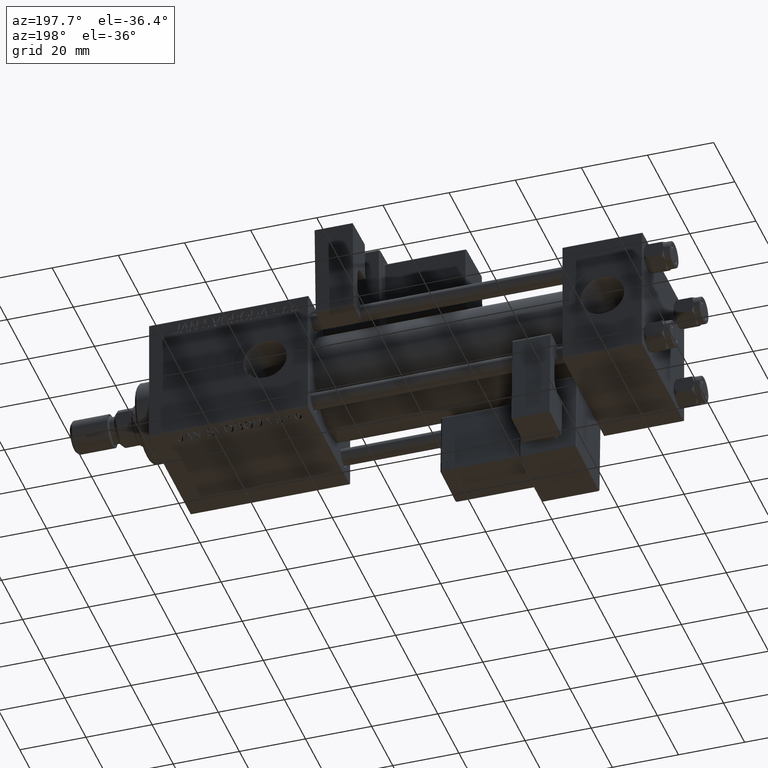
[diagram: clean part render]
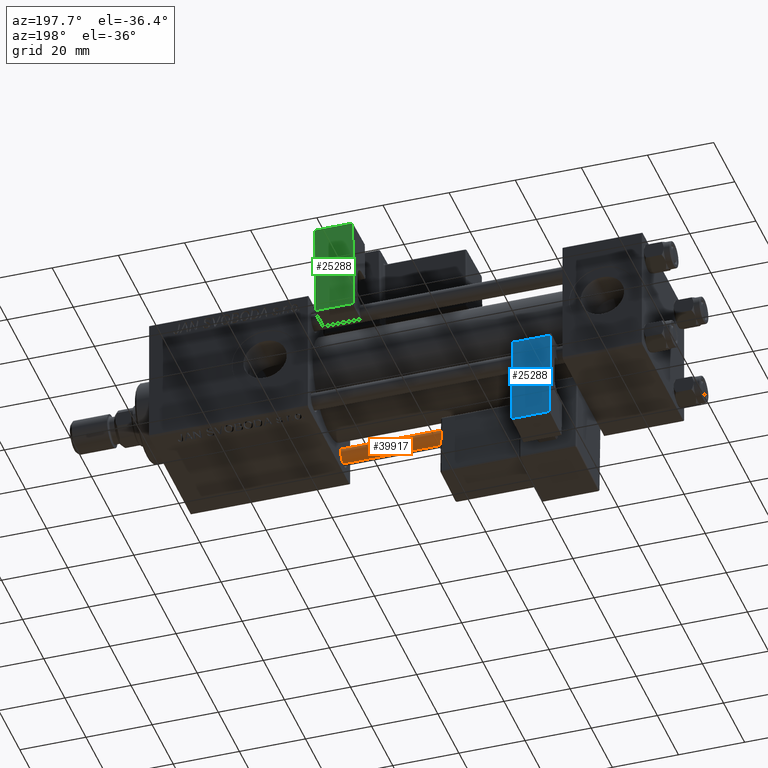
[diagram: same view with three faces highlighted in distinct colors, each labeled with its STEP entity id]
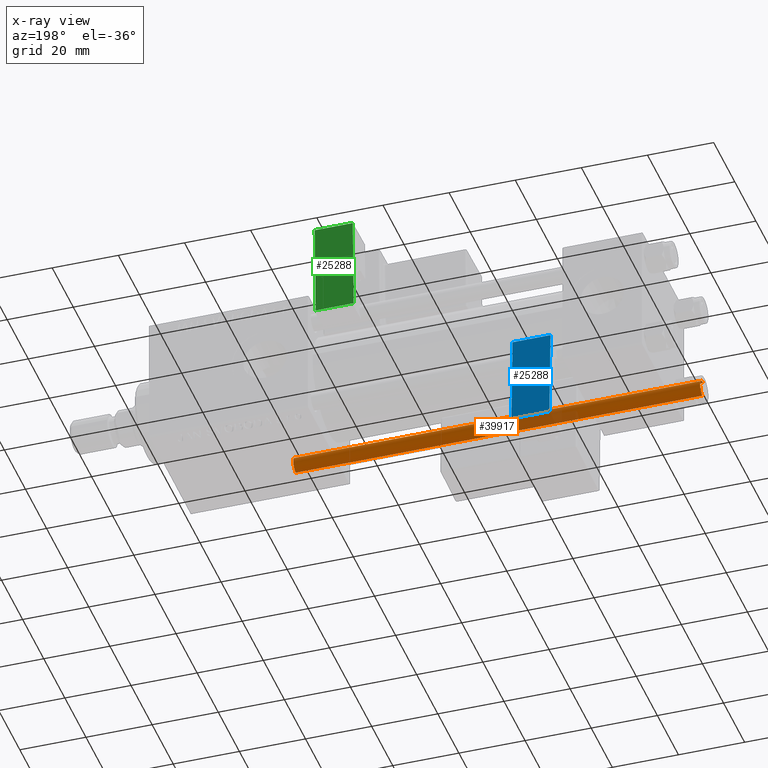
[diagram: x-ray of the same camera — body ghosted, the three highlighted faces saturated]
A machine part, auxiliary view with three faces highlighted in distinct colors.
The next image is the same camera in x-ray (body ghosted, the three faces saturated) — at least one of them is partly hidden behind the body in this view.
Their STEP definitions:

[orange] entity #39917 — the highlighted cylindrical surface (edge-blend (fillet) strip) has radius 2.5 mm, axis along (-1, -0, -0).
#3962 = CARTESIAN_POINT ( 'NONE',  ( -2.500000000000000000, 0.000000000000000000, 123.5000000000000000 ) ) ;
#5539 = VECTOR ( 'NONE', #29786, 1000.000000000000000 ) ;
#6005 = EDGE_CURVE ( 'NONE', #32457, #11741, #8797, .T. ) ;
#6721 = EDGE_CURVE ( 'NONE', #16374, #32172, #20381, .T. ) ;
#7364 = DIRECTION ( 'NONE',  ( 1.000000000000000000, 0.000000000000000000, 0.000000000000000000 ) ) ;
#7715 = CARTESIAN_POINT ( 'NONE',  ( 0.000000000000000000, 0.000000000000000000, 124.0000000000000000 ) ) ;
#8247 = ORIENTED_EDGE ( 'NONE', *, *, #6005, .T. ) ;
#8320 = DIRECTION ( 'NONE',  ( 0.000000000000000000, 0.000000000000000000, -1.000000000000000000 ) ) ;
#8797 = CIRCLE ( 'NONE', #39892, 2.500000000000000000 ) ;
#9790 = EDGE_CURVE ( 'NONE', #32457, #32172, #50935, .T. ) ;
#11741 = VERTEX_POINT ( 'NONE', #3962 ) ;
#12439 = DIRECTION ( 'NONE',  ( -1.000000000000000000, 0.000000000000000000, 0.000000000000000000 ) ) ;
#12831 = CARTESIAN_POINT ( 'NONE',  ( 2.500000000000000000, 3.061616997868383141E-16, 124.0000000000000000 ) ) ;
#13504 = EDGE_LOOP ( 'NONE', ( #18262, #8247, #37176, #36371 ) ) ;
#15792 = FACE_OUTER_BOUND ( 'NONE', #13504, .T. ) ;
#16374 = VERTEX_POINT ( 'NONE', #50650 ) ;
#18084 = LINE ( 'NONE', #42602, #5539 ) ;
#18262 = ORIENTED_EDGE ( 'NONE', *, *, #9790, .F. ) ;
#20381 = CIRCLE ( 'NONE', #21255, 2.500000000000000000 ) ;
#21255 = AXIS2_PLACEMENT_3D ( 'NONE', #45465, #50195, #7364 ) ;
#23249 = CARTESIAN_POINT ( 'NONE',  ( 2.500000000000000000, 3.061616997868383141E-16, 123.5000000000000000 ) ) ;
#24670 = DIRECTION ( 'NONE',  ( -0.000000000000000000, -0.000000000000000000, -1.000000000000000000 ) ) ;
#25109 = EDGE_CURVE ( 'NONE', #11741, #16374, #18084, .T. ) ;
#29774 = DIRECTION ( 'NONE',  ( -0.000000000000000000, -0.000000000000000000, -1.000000000000000000 ) ) ;
#29786 = DIRECTION ( 'NONE',  ( -0.000000000000000000, -0.000000000000000000, -1.000000000000000000 ) ) ;
#31706 = VECTOR ( 'NONE', #29774, 1000.000000000000000 ) ;
#32172 = VERTEX_POINT ( 'NONE', #49565 ) ;
#32457 = VERTEX_POINT ( 'NONE', #23249 ) ;
#32491 = CYLINDRICAL_SURFACE ( 'NONE', #45007, 2.500000000000000000 ) ;
#33360 = DIRECTION ( 'NONE',  ( 1.000000000000000000, 0.000000000000000000, 0.000000000000000000 ) ) ;
#36371 = ORIENTED_EDGE ( 'NONE', *, *, #6721, .T. ) ;
#37176 = ORIENTED_EDGE ( 'NONE', *, *, #25109, .T. ) ;
#39892 = AXIS2_PLACEMENT_3D ( 'NONE', #41709, #8320, #33360 ) ;
#39917 = ADVANCED_FACE ( 'NONE', ( #15792 ), #32491, .T. ) ;
#41709 = CARTESIAN_POINT ( 'NONE',  ( 0.000000000000000000, 0.000000000000000000, 123.5000000000000000 ) ) ;
#42602 = CARTESIAN_POINT ( 'NONE',  ( -2.500000000000000000, 0.000000000000000000, 124.0000000000000000 ) ) ;
#45007 = AXIS2_PLACEMENT_3D ( 'NONE', #7715, #24670, #12439 ) ;
#45465 = CARTESIAN_POINT ( 'NONE',  ( 0.000000000000000000, 0.000000000000000000, 0.5000000000000004441 ) ) ;
#49565 = CARTESIAN_POINT ( 'NONE',  ( 2.500000000000000000, 3.061616997868383141E-16, 0.5000000000000004441 ) ) ;
#50195 = DIRECTION ( 'NONE',  ( -0.000000000000000000, -0.000000000000000000, 1.000000000000000000 ) ) ;
#50650 = CARTESIAN_POINT ( 'NONE',  ( -2.500000000000000000, 0.000000000000000000, 0.5000000000000004441 ) ) ;
#50935 = LINE ( 'NONE', #12831, #31706 ) ;

[blue] entity #25288 — the highlighted planar face has unit normal (0, -0.9994, -0.0353).
#3071 = DIRECTION ( 'NONE',  ( 1.000000000000000000, 1.508455196501571183E-16, 0.000000000000000000 ) ) ;
#3275 = CARTESIAN_POINT ( 'NONE',  ( -5.750000000000000000, 5.750000000000000000, 28.00000000000000000 ) ) ;
#3334 = DIRECTION ( 'NONE',  ( 1.508455196501571183E-16, -1.000000000000000000, 0.000000000000000000 ) ) ;
#8260 = EDGE_LOOP ( 'NONE', ( #50239, #29198, #14614, #49750 ) ) ;
#8710 = VERTEX_POINT ( 'NONE', #52636 ) ;
#11898 = DIRECTION ( 'NONE',  ( 1.000000000000000000, 1.508455196501571183E-16, -0.000000000000000000 ) ) ;
#14614 = ORIENTED_EDGE ( 'NONE', *, *, #27803, .T. ) ;
#15679 = LINE ( 'NONE', #54864, #17198 ) ;
#17158 = VECTOR ( 'NONE', #54347, 1000.000000000000000 ) ;
#17198 = VECTOR ( 'NONE', #46255, 1000.000000000000000 ) ;
#17541 = CARTESIAN_POINT ( 'NONE',  ( -5.750000000000000000, 5.750000000000000000, 28.00000000000000000 ) ) ;
#19694 = EDGE_CURVE ( 'NONE', #51663, #40198, #26420, .T. ) ;
#20456 = VECTOR ( 'NONE', #30592, 1000.000000000000000 ) ;
#25288 = ADVANCED_FACE ( 'NONE', ( #45877 ), #28091, .F. ) ;
#26420 = LINE ( 'NONE', #47027, #20456 ) ;
#27803 = EDGE_CURVE ( 'NONE', #48949, #8710, #54616, .T. ) ;
#28091 = PLANE ( 'NONE',  #34885 ) ;
#29198 = ORIENTED_EDGE ( 'NONE', *, *, #52222, .T. ) ;
#30592 = DIRECTION ( 'NONE',  ( -0.000000000000000000, -0.000000000000000000, -1.000000000000000000 ) ) ;
#31297 = EDGE_CURVE ( 'NONE', #8710, #40198, #15679, .T. ) ;
#34611 = CARTESIAN_POINT ( 'NONE',  ( -5.750000000000000000, 5.750000000000000000, 0.000000000000000000 ) ) ;
#34885 = AXIS2_PLACEMENT_3D ( 'NONE', #46165, #3334, #3071 ) ;
#40198 = VERTEX_POINT ( 'NONE', #34611 ) ;
#41382 = LINE ( 'NONE', #3275, #54290 ) ;
#45877 = FACE_OUTER_BOUND ( 'NONE', #8260, .T. ) ;
#46165 = CARTESIAN_POINT ( 'NONE',  ( -5.750000000000000000, 5.750000000000000000, 12.00000000000000000 ) ) ;
#46255 = DIRECTION ( 'NONE',  ( -1.000000000000000000, -1.508455196501571429E-16, -0.000000000000000000 ) ) ;
#47027 = CARTESIAN_POINT ( 'NONE',  ( -5.750000000000000000, 5.750000000000000000, 12.00000000000000000 ) ) ;
#48949 = VERTEX_POINT ( 'NONE', #52756 ) ;
#49374 = CARTESIAN_POINT ( 'NONE',  ( 5.750000000000000000, 5.750000000000001776, 12.00000000000000000 ) ) ;
#49750 = ORIENTED_EDGE ( 'NONE', *, *, #31297, .T. ) ;
#50239 = ORIENTED_EDGE ( 'NONE', *, *, #19694, .F. ) ;
#51663 = VERTEX_POINT ( 'NONE', #17541 ) ;
#52222 = EDGE_CURVE ( 'NONE', #51663, #48949, #41382, .T. ) ;
#52636 = CARTESIAN_POINT ( 'NONE',  ( 5.750000000000000000, 5.750000000000001776, 0.000000000000000000 ) ) ;
#52756 = CARTESIAN_POINT ( 'NONE',  ( 5.750000000000000000, 5.750000000000001776, 28.00000000000000000 ) ) ;
#54290 = VECTOR ( 'NONE', #11898, 1000.000000000000000 ) ;
#54347 = DIRECTION ( 'NONE',  ( -0.000000000000000000, -0.000000000000000000, -1.000000000000000000 ) ) ;
#54616 = LINE ( 'NONE', #49374, #17158 ) ;
#54864 = CARTESIAN_POINT ( 'NONE',  ( -5.750000000000000000, 5.750000000000000000, 0.000000000000000000 ) ) ;

[green] entity #25288 — the highlighted planar face has unit normal (-0, -0.9994, 0.0353).
#3071 = DIRECTION ( 'NONE',  ( 1.000000000000000000, 1.508455196501571183E-16, 0.000000000000000000 ) ) ;
#3275 = CARTESIAN_POINT ( 'NONE',  ( -5.750000000000000000, 5.750000000000000000, 28.00000000000000000 ) ) ;
#3334 = DIRECTION ( 'NONE',  ( 1.508455196501571183E-16, -1.000000000000000000, 0.000000000000000000 ) ) ;
#8260 = EDGE_LOOP ( 'NONE', ( #50239, #29198, #14614, #49750 ) ) ;
#8710 = VERTEX_POINT ( 'NONE', #52636 ) ;
#11898 = DIRECTION ( 'NONE',  ( 1.000000000000000000, 1.508455196501571183E-16, -0.000000000000000000 ) ) ;
#14614 = ORIENTED_EDGE ( 'NONE', *, *, #27803, .T. ) ;
#15679 = LINE ( 'NONE', #54864, #17198 ) ;
#17158 = VECTOR ( 'NONE', #54347, 1000.000000000000000 ) ;
#17198 = VECTOR ( 'NONE', #46255, 1000.000000000000000 ) ;
#17541 = CARTESIAN_POINT ( 'NONE',  ( -5.750000000000000000, 5.750000000000000000, 28.00000000000000000 ) ) ;
#19694 = EDGE_CURVE ( 'NONE', #51663, #40198, #26420, .T. ) ;
#20456 = VECTOR ( 'NONE', #30592, 1000.000000000000000 ) ;
#25288 = ADVANCED_FACE ( 'NONE', ( #45877 ), #28091, .F. ) ;
#26420 = LINE ( 'NONE', #47027, #20456 ) ;
#27803 = EDGE_CURVE ( 'NONE', #48949, #8710, #54616, .T. ) ;
#28091 = PLANE ( 'NONE',  #34885 ) ;
#29198 = ORIENTED_EDGE ( 'NONE', *, *, #52222, .T. ) ;
#30592 = DIRECTION ( 'NONE',  ( -0.000000000000000000, -0.000000000000000000, -1.000000000000000000 ) ) ;
#31297 = EDGE_CURVE ( 'NONE', #8710, #40198, #15679, .T. ) ;
#34611 = CARTESIAN_POINT ( 'NONE',  ( -5.750000000000000000, 5.750000000000000000, 0.000000000000000000 ) ) ;
#34885 = AXIS2_PLACEMENT_3D ( 'NONE', #46165, #3334, #3071 ) ;
#40198 = VERTEX_POINT ( 'NONE', #34611 ) ;
#41382 = LINE ( 'NONE', #3275, #54290 ) ;
#45877 = FACE_OUTER_BOUND ( 'NONE', #8260, .T. ) ;
#46165 = CARTESIAN_POINT ( 'NONE',  ( -5.750000000000000000, 5.750000000000000000, 12.00000000000000000 ) ) ;
#46255 = DIRECTION ( 'NONE',  ( -1.000000000000000000, -1.508455196501571429E-16, -0.000000000000000000 ) ) ;
#47027 = CARTESIAN_POINT ( 'NONE',  ( -5.750000000000000000, 5.750000000000000000, 12.00000000000000000 ) ) ;
#48949 = VERTEX_POINT ( 'NONE', #52756 ) ;
#49374 = CARTESIAN_POINT ( 'NONE',  ( 5.750000000000000000, 5.750000000000001776, 12.00000000000000000 ) ) ;
#49750 = ORIENTED_EDGE ( 'NONE', *, *, #31297, .T. ) ;
#50239 = ORIENTED_EDGE ( 'NONE', *, *, #19694, .F. ) ;
#51663 = VERTEX_POINT ( 'NONE', #17541 ) ;
#52222 = EDGE_CURVE ( 'NONE', #51663, #48949, #41382, .T. ) ;
#52636 = CARTESIAN_POINT ( 'NONE',  ( 5.750000000000000000, 5.750000000000001776, 0.000000000000000000 ) ) ;
#52756 = CARTESIAN_POINT ( 'NONE',  ( 5.750000000000000000, 5.750000000000001776, 28.00000000000000000 ) ) ;
#54290 = VECTOR ( 'NONE', #11898, 1000.000000000000000 ) ;
#54347 = DIRECTION ( 'NONE',  ( -0.000000000000000000, -0.000000000000000000, -1.000000000000000000 ) ) ;
#54616 = LINE ( 'NONE', #49374, #17158 ) ;
#54864 = CARTESIAN_POINT ( 'NONE',  ( -5.750000000000000000, 5.750000000000000000, 0.000000000000000000 ) ) ;